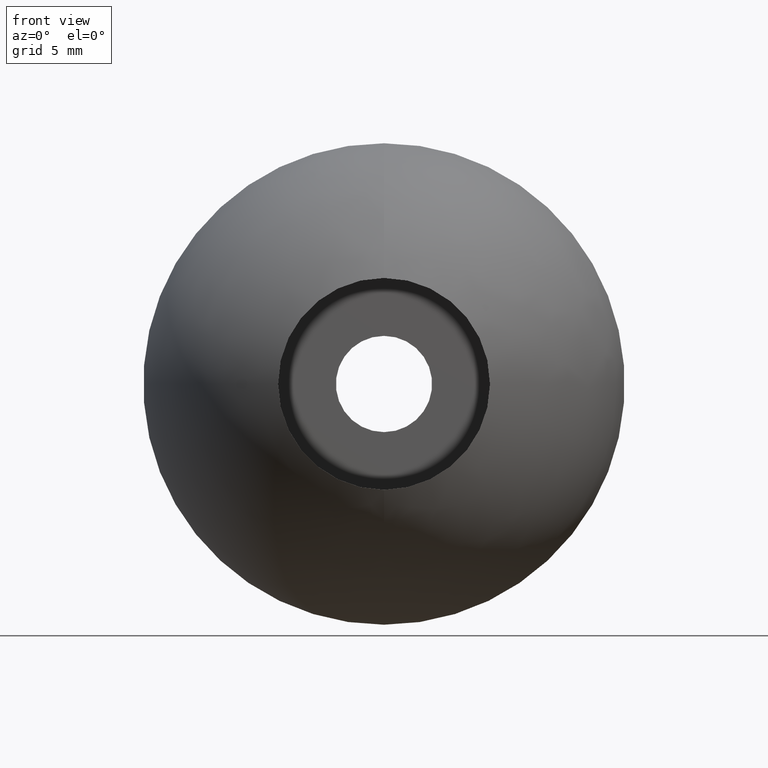
[diagram: clean part render]
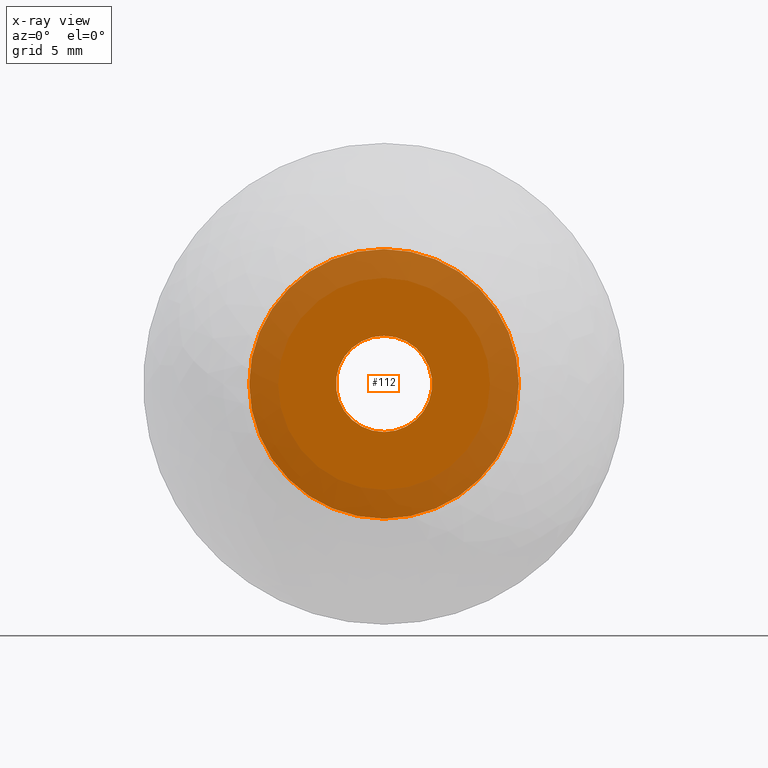
[diagram: x-ray — body ghosted, one internal face saturated and labeled with its STEP entity id]
A machine part, front view, then the same camera in x-ray: the body is ghosted and one INTERNAL B-rep face — a face not visible from any outside direction — is saturated and labeled: STEP entity #112.
In plain terms, the highlighted planar face has unit normal (0, 1, 0).
Its self-contained STEP definition (entity closure, byte-faithful):
#112=ADVANCED_FACE('',(#132,#133),#131,.F.);
#131=PLANE('',#329);
#132=FACE_OUTER_BOUND('',#330,.T.);
#133=FACE_BOUND('',#331,.T.);
#326=CARTESIAN_POINT('',(-1.45492267836E+001,9.80000000000E+000,-1.61000000000E+001));
#327=DIRECTION('',(0.00000000000E+000,1.00000000000E+000,0.00000000000E+000));
#328=DIRECTION('',(0.00000000000E+000,-0.00000000000E+000,1.00000000000E+000));
#329=AXIS2_PLACEMENT_3D('',#326,#327,#328);
#330=EDGE_LOOP('',(#448,#449));
#331=EDGE_LOOP('',(#450,#451));
#448=ORIENTED_EDGE('',*,*,#524,.T.);
#449=ORIENTED_EDGE('',*,*,#525,.T.);
#450=ORIENTED_EDGE('',*,*,#526,.F.);
#451=ORIENTED_EDGE('',*,*,#527,.F.);
#524=EDGE_CURVE('',#562,#563,#564,.T.);
#525=EDGE_CURVE('',#563,#562,#570,.T.);
#526=EDGE_CURVE('',#576,#577,#578,.T.);
#527=EDGE_CURVE('',#577,#576,#584,.T.);
#562=VERTEX_POINT('',#814);
#563=VERTEX_POINT('',#815);
#564=CIRCLE('',#819,7.00000000000E+000);
#570=CIRCLE('',#823,7.00000000000E+000);
#576=VERTEX_POINT('',#824);
#577=VERTEX_POINT('',#825);
#578=CIRCLE('',#829,2.50000000000E+000);
#584=CIRCLE('',#833,2.50000000000E+000);
#814=CARTESIAN_POINT('',(8.57224447676E-016,9.80000000000E+000,7.00000000000E+000));
#815=CARTESIAN_POINT('',(2.96059473233E-016,9.80000000000E+000,-7.00000000000E+000));
#816=CARTESIAN_POINT('',(0.00000000000E+000,9.80000000000E+000,0.00000000000E+000));
#817=DIRECTION('',(0.00000000000E+000,-1.00000000000E+000,0.00000000000E+000));
#818=DIRECTION('',(-0.00000000000E+000,-0.00000000000E+000,1.00000000000E+000));
#819=AXIS2_PLACEMENT_3D('',#816,#817,#818);
#820=CARTESIAN_POINT('',(0.00000000000E+000,9.80000000000E+000,0.00000000000E+000));
#821=DIRECTION('',(0.00000000000E+000,-1.00000000000E+000,0.00000000000E+000));
#822=DIRECTION('',(-0.00000000000E+000,-0.00000000000E+000,1.00000000000E+000));
#823=AXIS2_PLACEMENT_3D('',#820,#821,#822);
#824=CARTESIAN_POINT('',(0.00000000000E+000,9.80000000000E+000,2.50000000000E+000));
#825=CARTESIAN_POINT('',(-4.54181325073E-016,9.80000000000E+000,-2.50000000000E+000));
#826=CARTESIAN_POINT('',(0.00000000000E+000,9.80000000000E+000,0.00000000000E+000));
#827=DIRECTION('',(0.00000000000E+000,-1.00000000000E+000,0.00000000000E+000));
#828=DIRECTION('',(-5.92118946468E-017,-0.00000000000E+000,-1.00000000000E+000));
#829=AXIS2_PLACEMENT_3D('',#826,#827,#828);
#830=CARTESIAN_POINT('',(0.00000000000E+000,9.80000000000E+000,0.00000000000E+000));
#831=DIRECTION('',(0.00000000000E+000,-1.00000000000E+000,0.00000000000E+000));
#832=DIRECTION('',(-5.92118946468E-017,-0.00000000000E+000,-1.00000000000E+000));
#833=AXIS2_PLACEMENT_3D('',#830,#831,#832);